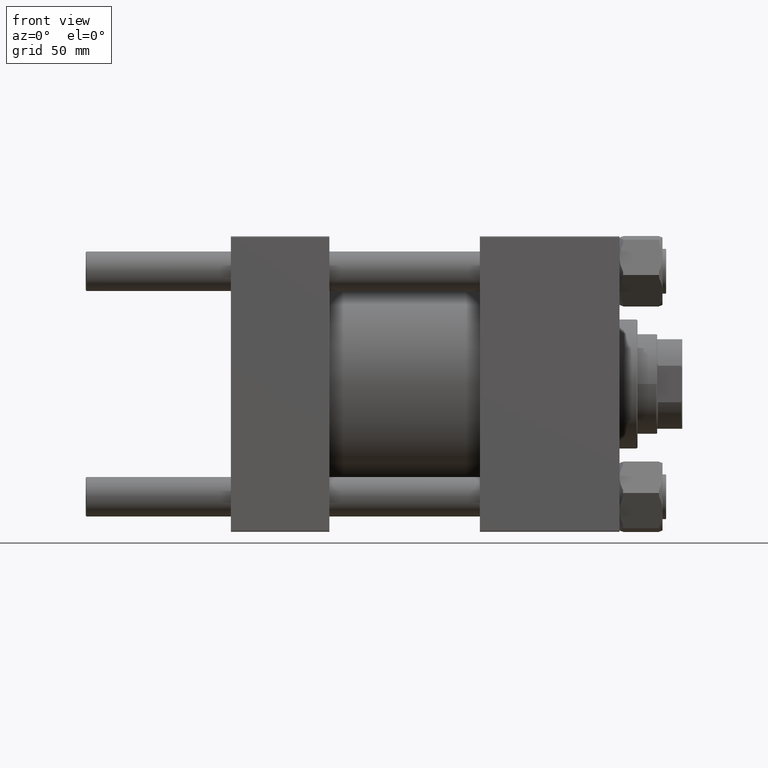
[diagram: clean part render]
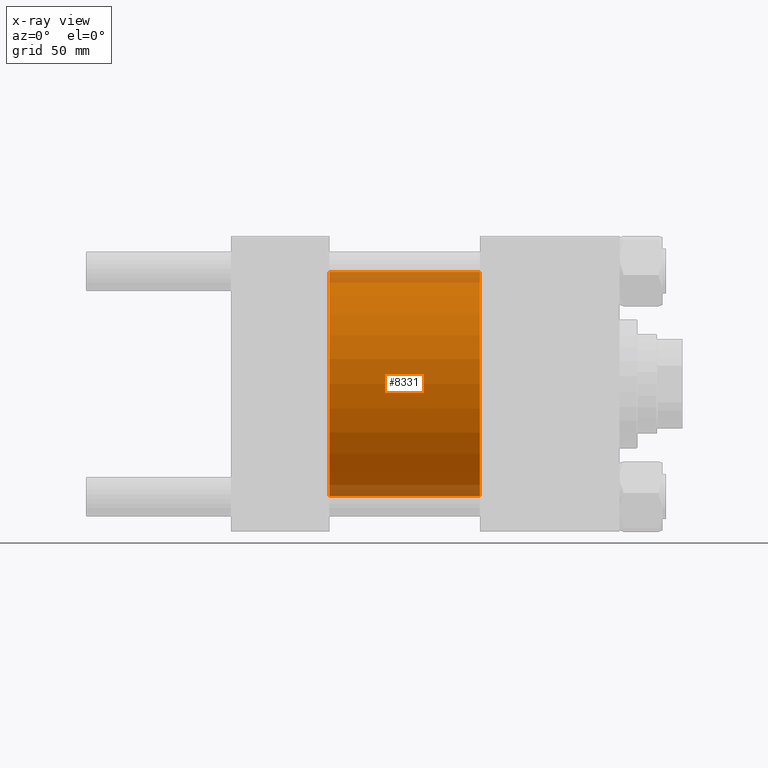
[diagram: x-ray — body ghosted, one internal face saturated and labeled with its STEP entity id]
A machine part, front view, then the same camera in x-ray: the body is ghosted and one INTERNAL B-rep face — a face not visible from any outside direction — is saturated and labeled: STEP entity #8331.
In plain terms, the highlighted cylindrical surface (partial cylindrical patch) has radius 62.5 mm, axis along (-1, -0, -0).
Its self-contained STEP definition (entity closure, byte-faithful):
#1535 = CARTESIAN_POINT ( 'NONE',  ( 139.0000000000000000, 7.654042494670956226E-15, -62.50000000000000000 ) ) ;
#3392 = VECTOR ( 'NONE', #48203, 1000.000000000000000 ) ;
#5799 = CIRCLE ( 'NONE', #10682, 62.50000000000000000 ) ;
#7916 = CARTESIAN_POINT ( 'NONE',  ( 139.0000000000000000, 0.000000000000000000, 62.50000000000000000 ) ) ;
#8236 = LINE ( 'NONE', #42919, #22265 ) ;
#8331 = ADVANCED_FACE ( 'NONE', ( #46092 ), #15988, .F. ) ;
#9028 = CARTESIAN_POINT ( 'NONE',  ( 55.00000000000000000, 0.000000000000000000, 62.50000000000000000 ) ) ;
#10682 = AXIS2_PLACEMENT_3D ( 'NONE', #42142, #22518, #18940 ) ;
#10942 = DIRECTION ( 'NONE',  ( 1.000000000000000000, 0.000000000000000000, 0.000000000000000000 ) ) ;
#11563 = DIRECTION ( 'NONE',  ( -1.000000000000000000, -0.000000000000000000, -0.000000000000000000 ) ) ;
#12070 = VERTEX_POINT ( 'NONE', #7916 ) ;
#14051 = EDGE_LOOP ( 'NONE', ( #26317, #20399, #21902, #27734 ) ) ;
#14606 = CARTESIAN_POINT ( 'NONE',  ( 139.0000000000000000, 7.654042494670956226E-15, -62.50000000000000000 ) ) ;
#14774 = CARTESIAN_POINT ( 'NONE',  ( 55.00000000000000000, 7.654042494670956226E-15, -62.50000000000000000 ) ) ;
#15274 = DIRECTION ( 'NONE',  ( 0.000000000000000000, 0.000000000000000000, -1.000000000000000000 ) ) ;
#15988 = CYLINDRICAL_SURFACE ( 'NONE', #28054, 62.50000000000000000 ) ;
#16451 = VERTEX_POINT ( 'NONE', #9028 ) ;
#18940 = DIRECTION ( 'NONE',  ( 0.000000000000000000, 0.000000000000000000, -1.000000000000000000 ) ) ;
#19068 = CARTESIAN_POINT ( 'NONE',  ( 139.0000000000000000, 0.000000000000000000, 0.000000000000000000 ) ) ;
#20399 = ORIENTED_EDGE ( 'NONE', *, *, #35845, .T. ) ;
#21902 = ORIENTED_EDGE ( 'NONE', *, *, #35561, .F. ) ;
#22265 = VECTOR ( 'NONE', #11563, 1000.000000000000000 ) ;
#22518 = DIRECTION ( 'NONE',  ( 1.000000000000000000, 0.000000000000000000, 0.000000000000000000 ) ) ;
#26317 = ORIENTED_EDGE ( 'NONE', *, *, #49324, .T. ) ;
#27734 = ORIENTED_EDGE ( 'NONE', *, *, #47860, .F. ) ;
#28054 = AXIS2_PLACEMENT_3D ( 'NONE', #19068, #34625, #31299 ) ;
#31299 = DIRECTION ( 'NONE',  ( 0.000000000000000000, 0.000000000000000000, 1.000000000000000000 ) ) ;
#34539 = CIRCLE ( 'NONE', #49159, 62.50000000000000000 ) ;
#34625 = DIRECTION ( 'NONE',  ( -1.000000000000000000, -0.000000000000000000, -0.000000000000000000 ) ) ;
#35561 = EDGE_CURVE ( 'NONE', #16451, #41342, #5799, .T. ) ;
#35845 = EDGE_CURVE ( 'NONE', #44231, #41342, #36497, .T. ) ;
#36497 = LINE ( 'NONE', #1535, #3392 ) ;
#41342 = VERTEX_POINT ( 'NONE', #14774 ) ;
#42142 = CARTESIAN_POINT ( 'NONE',  ( 55.00000000000000000, 0.000000000000000000, 0.000000000000000000 ) ) ;
#42919 = CARTESIAN_POINT ( 'NONE',  ( 139.0000000000000000, 0.000000000000000000, 62.50000000000000000 ) ) ;
#44231 = VERTEX_POINT ( 'NONE', #14606 ) ;
#46092 = FACE_OUTER_BOUND ( 'NONE', #14051, .T. ) ;
#46127 = CARTESIAN_POINT ( 'NONE',  ( 139.0000000000000000, 0.000000000000000000, 0.000000000000000000 ) ) ;
#47860 = EDGE_CURVE ( 'NONE', #12070, #16451, #8236, .T. ) ;
#48203 = DIRECTION ( 'NONE',  ( -1.000000000000000000, -0.000000000000000000, -0.000000000000000000 ) ) ;
#49159 = AXIS2_PLACEMENT_3D ( 'NONE', #46127, #10942, #15274 ) ;
#49324 = EDGE_CURVE ( 'NONE', #12070, #44231, #34539, .T. ) ;